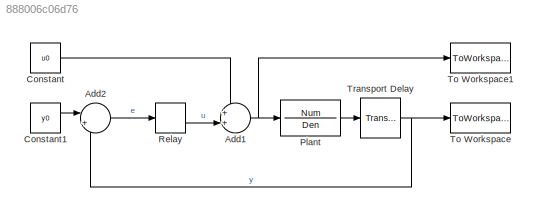
MODEL slx_888006c06d76
KIND model
CONFIG AbsTol = auto
CONFIG FixedStep = dt
CONFIG MaxStep = 1e-1
CONFIG MinStep = 1e-2
CONFIG RelTol = 1e-3
CONFIG SampleTimeConstraint = Unconstrained
CONFIG Solver = ode3
CONFIG SolverMode = SingleTasking
CONFIG SolverName = ode3
CONFIG StartTime = t_start
CONFIG StopTime = t_end
BLOCK [Sum] Add1
  IconShape = round
  InputSameDT = off
  Inputs = ++|
  OutDataTypeStr = Inherit: Inherit via internal rule
  Ports = [2, 1]
  SaturateOnIntegerOverflow = off
BLOCK [Sum] Add2
  IconShape = round
  InputSameDT = off
  Inputs = |+-
  OutDataTypeStr = Inherit: Inherit via internal rule
  Ports = [2, 1]
  SaturateOnIntegerOverflow = off
BLOCK [Constant] Constant
  Value = u0
BLOCK [Constant] Constant1
  Value = y0
BLOCK [TransferFcn] Plant
  Denominator = Den
  Numerator = Num
BLOCK [Relay] Relay
  OffOutputValue = -abs(d2)
  OffSwitchValue = -h
  OnOutputValue = +abs(d1)
  OnSwitchValue = h
BLOCK [ToWorkspace] To Workspace
  FixptAsFi = on
  MaxDataPoints = inf
  Ports = [1]
  SampleTime = -1
  Save2DSignal = 3-D array (concatenate along third dimension)
  SaveFormat = Timeseries
  VariableName = y
BLOCK [ToWorkspace] To Workspace1
  FixptAsFi = on
  MaxDataPoints = inf
  Ports = [1]
  SampleTime = -1
  Save2DSignal = 3-D array (concatenate along third dimension)
  SaveFormat = Timeseries
  VariableName = u
BLOCK [TransportDelay] Transport Delay
  DelayTime = L
  InitialOutput = y0
  Ports = [1, 1]
NET Add1:1 -> Plant:1, To Workspace1:1
LINE Add2:1 -> Relay:1
LINE Constant1:1 -> Add2:1
LINE Constant:1 -> Add1:1
LINE Plant:1 -> Transport Delay:1
LINE Relay:1 -> Add1:2
NET Transport Delay:1 -> Add2:2, To Workspace:1
note: NET lines group one-source signal fan-out (src -> all destinations, sorted); 1:1 wires keep LINE
